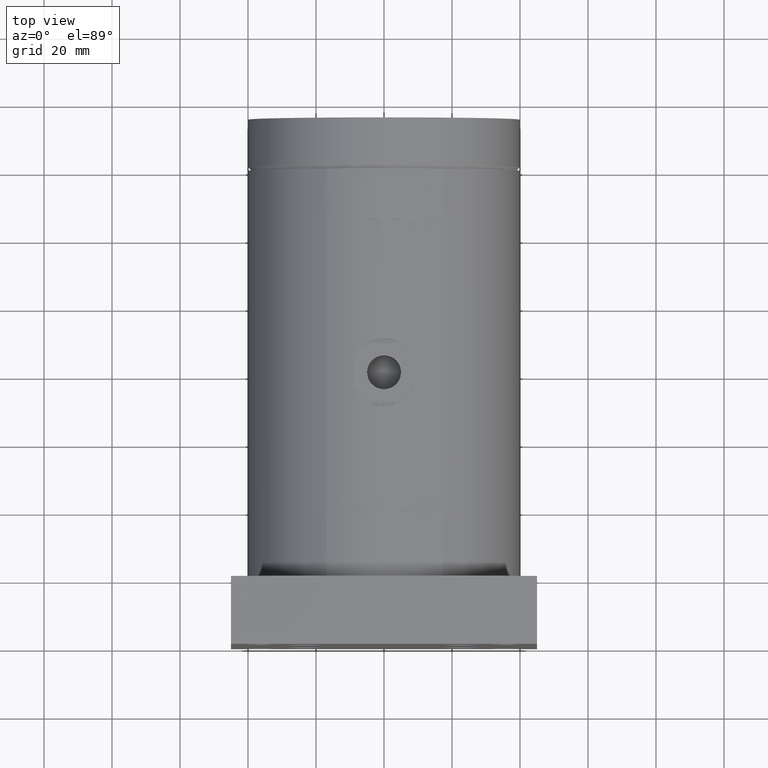
[diagram: clean part render]
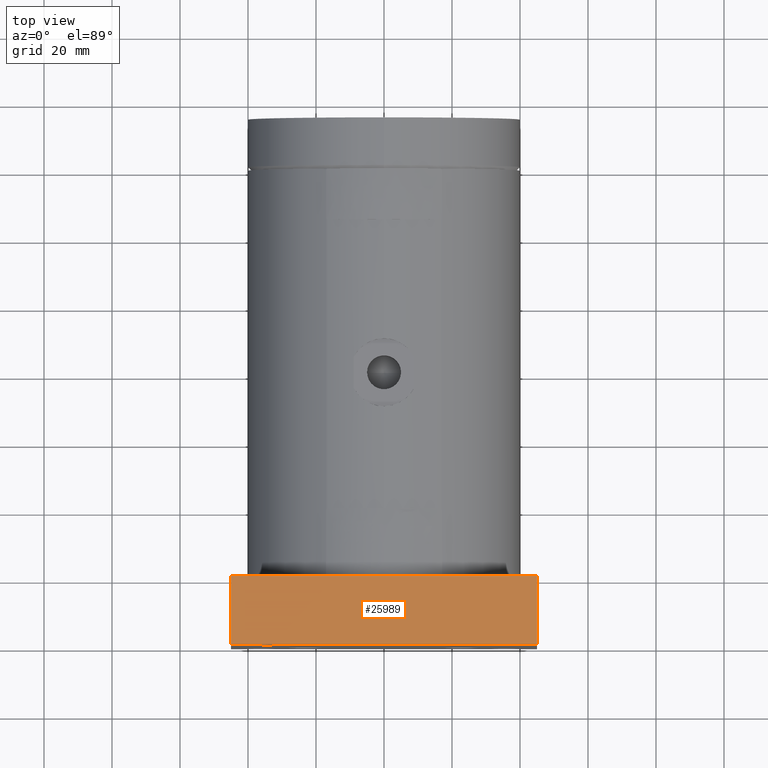
[diagram: same view with one face highlighted and labeled with its STEP entity id]
A machine part, top view. The second image highlights one B-rep face of the part: STEP entity #25989.
In plain terms, the highlighted planar face has unit normal (0, 0, 1).
Its self-contained STEP definition (entity closure, byte-faithful):
#798 = CARTESIAN_POINT ( 'NONE',  ( 45.00000000000000000, 0.0000000000000000000, 45.00000000000000000 ) ) ;
#1070 = CARTESIAN_POINT ( 'NONE',  ( -45.00000000000000000, 20.00000000000000000, 45.00000000000000000 ) ) ;
#2320 = CARTESIAN_POINT ( 'NONE',  ( -45.00000000000000000, 20.00000000000000000, 45.00000000000000000 ) ) ;
#2786 = FACE_OUTER_BOUND ( 'NONE', #8752, .T. ) ;
#3233 = LINE ( 'NONE', #20714, #32773 ) ;
#3607 = VERTEX_POINT ( 'NONE', #8554 ) ;
#4683 = LINE ( 'NONE', #27040, #30208 ) ;
#5010 = DIRECTION ( 'NONE',  ( 0.0000000000000000000, -1.000000000000000000, 0.0000000000000000000 ) ) ;
#5217 = LINE ( 'NONE', #1070, #6438 ) ;
#6438 = VECTOR ( 'NONE', #26852, 1000.000000000000000 ) ;
#6772 = ORIENTED_EDGE ( 'NONE', *, *, #28374, .T. ) ;
#8554 = CARTESIAN_POINT ( 'NONE',  ( -45.00000000000000000, 0.0000000000000000000, 45.00000000000000000 ) ) ;
#8752 = EDGE_LOOP ( 'NONE', ( #6772, #28127, #29951, #17018 ) ) ;
#12187 = CARTESIAN_POINT ( 'NONE',  ( -45.00000000000000000, 0.0000000000000000000, 45.00000000000000000 ) ) ;
#14218 = AXIS2_PLACEMENT_3D ( 'NONE', #12187, #19855, #16701 ) ;
#15582 = CARTESIAN_POINT ( 'NONE',  ( 45.00000000000000000, 20.00000000000000000, 45.00000000000000000 ) ) ;
#16701 = DIRECTION ( 'NONE',  ( 1.000000000000000000, 0.0000000000000000000, 0.0000000000000000000 ) ) ;
#17018 = ORIENTED_EDGE ( 'NONE', *, *, #29099, .T. ) ;
#17350 = VERTEX_POINT ( 'NONE', #30323 ) ;
#19855 = DIRECTION ( 'NONE',  ( 0.0000000000000000000, 0.0000000000000000000, 1.000000000000000000 ) ) ;
#20189 = PLANE ( 'NONE',  #14218 ) ;
#20714 = CARTESIAN_POINT ( 'NONE',  ( -45.00000000000000000, 20.00000000000000000, 45.00000000000000000 ) ) ;
#21913 = EDGE_CURVE ( 'NONE', #3607, #29553, #4683, .T. ) ;
#23161 = VERTEX_POINT ( 'NONE', #2320 ) ;
#25989 = ADVANCED_FACE ( 'NONE', ( #2786 ), #20189, .T. ) ;
#26692 = DIRECTION ( 'NONE',  ( 0.0000000000000000000, 1.000000000000000000, 0.0000000000000000000 ) ) ;
#26852 = DIRECTION ( 'NONE',  ( -1.000000000000000000, 0.0000000000000000000, 0.0000000000000000000 ) ) ;
#27040 = CARTESIAN_POINT ( 'NONE',  ( -45.00000000000000000, 0.0000000000000000000, 45.00000000000000000 ) ) ;
#27432 = VECTOR ( 'NONE', #26692, 1000.000000000000000 ) ;
#27819 = LINE ( 'NONE', #15582, #27432 ) ;
#28127 = ORIENTED_EDGE ( 'NONE', *, *, #21913, .T. ) ;
#28374 = EDGE_CURVE ( 'NONE', #23161, #3607, #3233, .T. ) ;
#29099 = EDGE_CURVE ( 'NONE', #17350, #23161, #5217, .T. ) ;
#29553 = VERTEX_POINT ( 'NONE', #798 ) ;
#29951 = ORIENTED_EDGE ( 'NONE', *, *, #32706, .T. ) ;
#30208 = VECTOR ( 'NONE', #32288, 1000.000000000000000 ) ;
#30323 = CARTESIAN_POINT ( 'NONE',  ( 45.00000000000000000, 20.00000000000000000, 45.00000000000000000 ) ) ;
#32288 = DIRECTION ( 'NONE',  ( 1.000000000000000000, 0.0000000000000000000, 0.0000000000000000000 ) ) ;
#32706 = EDGE_CURVE ( 'NONE', #29553, #17350, #27819, .T. ) ;
#32773 = VECTOR ( 'NONE', #5010, 1000.000000000000000 ) ;